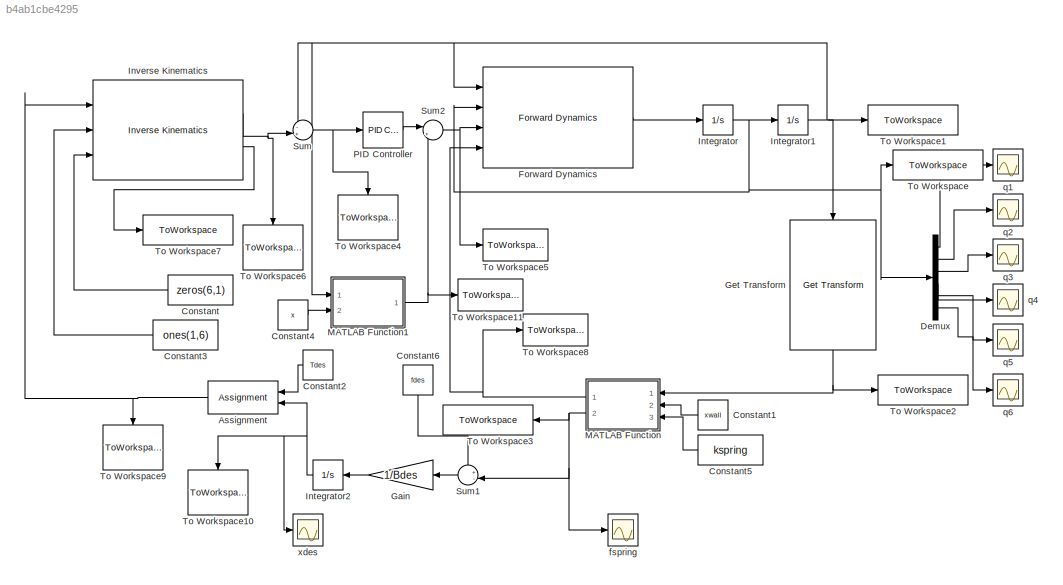
MODEL slx_b4ab1cbe4295
KIND model
CONFIG AbsTol = auto
CONFIG EnableMultiTasking = off
CONFIG FixedStep = 1e-3
CONFIG MaxStep = auto
CONFIG MinStep = auto
CONFIG RelTol = 1e-3
CONFIG SampleTimeConstraint = Unconstrained
CONFIG Solver = FixedStepAuto
CONFIG SolverName = FixedStepAuto
CONFIG StartTime = 0.0
CONFIG StopTime = 5
BLOCK [Assignment] Assignment
  DiagnosticForDimensions = Warning
  IndexOptions = Index vector (dialog),Index vector (dialog)
  Indices = 1,4
  NameLocation = top
  NumberOfDimensions = 2
  OutputSizes = 1,1
  Ports = [2, 1]
BLOCK [Constant] Constant
  NameLocation = top
  Value = zeros(6,1)
BLOCK [Constant] Constant1
  NameLocation = top
  Value = xwall
BLOCK [Constant] Constant2
  NameLocation = top
  Value = Tdes
BLOCK [Constant] Constant3
  NameLocation = top
  Value = ones(1,6)
BLOCK [Constant] Constant4
  Value = x
BLOCK [Constant] Constant5
  NameLocation = top
  Value = kspring
BLOCK [Constant] Constant6
  NameLocation = left
  Value = fdes
BLOCK [Demux] Demux
  Outputs = 6
  Ports = [1, 6]
BLOCK [Reference] Forward Dynamics  REF=robotmaniplib/Forward Dynamics
  Ports = [4, 1]
  SourceBlock = robotmaniplib/Forward Dynamics
  SourceProductBaseCode = RO
  SourceType = Forward Dynamics
BLOCK [Gain] Gain
  Gain = 1/Bdes
  NameLocation = top
BLOCK [Reference] Get Transform  REF=robotmaniplib/Get Transform
  NameLocation = left
  Ports = [1, 1]
  SourceBlock = robotmaniplib/Get Transform
  SourceProductBaseCode = RO
  SourceType = Get Transform
BLOCK [Integrator] Integrator
  InitialCondition = qdotinit
  Ports = [1, 1]
BLOCK [Integrator] Integrator1
  InitialCondition = qinit
  Ports = [1, 1]
BLOCK [Integrator] Integrator2
  InitialCondition = xwall
  LimitOutput = on
  NameLocation = top
  Ports = [1, 1]
  UpperSaturationLimit = 100
BLOCK [Reference] Inverse Kinematics  REF=robotmaniplib/Inverse Kinematics
  Ports = [3, 2]
  SourceBlock = robotmaniplib/Inverse Kinematics
  SourceProductBaseCode = RO
  SourceType = Inverse Kinematics
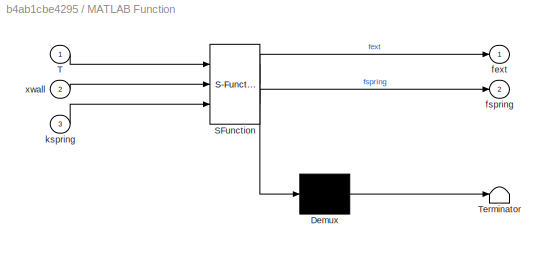
BLOCK [SubSystem] MATLAB Function
  ErrorFcn = Stateflow.Translate.translate
  NameLocation = top
  PermitHierarchicalResolution = ExplicitOnly
  Ports = [3, 2]
  RequestExecContextInheritance = off
  SFBlockType = MATLAB Function
  TreatAsAtomicUnit = on
BLOCK [Demux] MATLAB Function/ Demux 
  Outputs = 1
  Ports = [1, 1]
BLOCK [S-Function] MATLAB Function/ SFunction 
  EnableBusSupport = on
  FunctionName = sf_sfun
  PortCounts = [3 3]
  Ports = [3, 3]
  SFcnIsStateOwnerBlock = off
  SFunctionDeploymentMode = off
  Tag = Stateflow S-Function 2
BLOCK [Terminator] MATLAB Function/ Terminator 
BLOCK [Inport] MATLAB Function/T
BLOCK [Outport] MATLAB Function/fext
BLOCK [Outport] MATLAB Function/fspring
  Port = 2
BLOCK [Inport] MATLAB Function/kspring
  Port = 3
BLOCK [Inport] MATLAB Function/xwall
  Port = 2
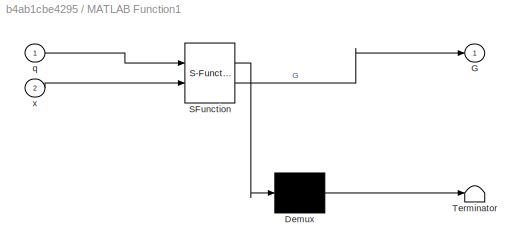
BLOCK [SubSystem] MATLAB Function1
  ErrorFcn = Stateflow.Translate.translate
  PermitHierarchicalResolution = ExplicitOnly
  Ports = [2, 1]
  RequestExecContextInheritance = off
  SFBlockType = MATLAB Function
  TreatAsAtomicUnit = on
BLOCK [Demux] MATLAB Function1/ Demux 
  Outputs = 1
  Ports = [1, 1]
BLOCK [S-Function] MATLAB Function1/ SFunction 
  EnableBusSupport = on
  FunctionName = sf_sfun
  PortCounts = [2 2]
  Ports = [2, 2]
  SFcnIsStateOwnerBlock = off
  SFunctionDeploymentMode = off
  Tag = Stateflow S-Function 1
BLOCK [Terminator] MATLAB Function1/ Terminator 
BLOCK [Outport] MATLAB Function1/G
BLOCK [Inport] MATLAB Function1/q
BLOCK [Inport] MATLAB Function1/x
  Port = 2
BLOCK [Reference] PID Controller  REF=simulink/Continuous/PID Controller
  Ports = [1, 1]
  SourceBlock = simulink/Continuous/PID Controller
  SourceProductBaseCode = SL
  SourceType = PID 1dof
BLOCK [Sum] Sum
  Inputs = -+|
  Ports = [2, 1]
BLOCK [Sum] Sum1
  Inputs = +-|
  NameLocation = top
  Ports = [2, 1]
BLOCK [Sum] Sum2
  Inputs = |++
  Ports = [2, 1]
BLOCK [ToWorkspace] To Workspace
  FixptAsFi = on
  MaxDataPoints = inf
  Ports = [1]
  SampleTime = -1
  VariableName = qdot
BLOCK [ToWorkspace] To Workspace1
  FixptAsFi = on
  MaxDataPoints = inf
  Ports = [1]
  SampleTime = -1
  VariableName = q
BLOCK [ToWorkspace] To Workspace10
  FixptAsFi = on
  MaxDataPoints = inf
  NameLocation = left
  Ports = [1]
  SampleTime = -1
  SaveFormat = Structure With Time
  VariableName = xdes
BLOCK [ToWorkspace] To Workspace11
  FixptAsFi = on
  MaxDataPoints = inf
  Ports = [1]
  SampleTime = -1
  VariableName = taug
BLOCK [ToWorkspace] To Workspace2
  FixptAsFi = on
  MaxDataPoints = inf
  Ports = [1]
  SampleTime = -1
  VariableName = T
BLOCK [ToWorkspace] To Workspace3
  FixptAsFi = on
  MaxDataPoints = inf
  NameLocation = top
  Ports = [1]
  SampleTime = -1
  VariableName = fspring
BLOCK [ToWorkspace] To Workspace4
  FixptAsFi = on
  MaxDataPoints = inf
  NameLocation = left
  Ports = [1]
  SampleTime = -1
  VariableName = qerr
BLOCK [ToWorkspace] To Workspace5
  FixptAsFi = on
  MaxDataPoints = inf
  Ports = [1]
  SampleTime = -1
  VariableName = tau
BLOCK [ToWorkspace] To Workspace6
  FixptAsFi = on
  MaxDataPoints = inf
  NameLocation = left
  Ports = [1]
  SampleTime = -1
  VariableName = qdes
BLOCK [ToWorkspace] To Workspace7
  FixptAsFi = on
  MaxDataPoints = inf
  Ports = [1]
  SampleTime = -1
  SaveFormat = Timeseries
  VariableName = Info
BLOCK [ToWorkspace] To Workspace8
  FixptAsFi = on
  MaxDataPoints = inf
  Ports = [1]
  SampleTime = -1
  VariableName = fext
BLOCK [ToWorkspace] To Workspace9
  FixptAsFi = on
  MaxDataPoints = inf
  NameLocation = left
  Ports = [1]
  SampleTime = -1
  VariableName = Td
BLOCK [Scope] fspring
  Floating = off
  NumInputPorts = 1
  Ports = [1]
  ScopeSpecificationString = Simulink.scopes.TimeScopeBlockCfg('CurrentConfiguration', extmgr.ConfigurationSet(extmgr.Configuration('Core','General UI',true),extmgr.Configuration('Core','Source UI',true),extmgr.Configuration('Sources','WiredSimulink',true,'DataLoggingVariableName','ScopeData1'),extmgr.Configuration('Visuals','Time Domain',true,'SerializedDisplays',{struct('MinYLimReal','-0.31395','MaxYLimReal','2.82553','YLab...<+1437ch>
BLOCK [Scope] q1
  Floating = off
  NumInputPorts = 1
  Ports = [1]
  ScopeSpecificationString = Simulink.scopes.TimeScopeBlockCfg('CurrentConfiguration', extmgr.ConfigurationSet(extmgr.Configuration('Core','General UI',true),extmgr.Configuration('Core','Source UI',true),extmgr.Configuration('Sources','WiredSimulink',true,'DataLoggingVariableName','ScopeData6'),extmgr.Configuration('Visuals','Time Domain',true,'SerializedDisplays',{struct('MinYLimReal','-16.77759','MaxYLimReal','16.45482','YL...<+1438ch>
BLOCK [Scope] q2
  Floating = off
  NumInputPorts = 1
  Ports = [1]
  ScopeSpecificationString = Simulink.scopes.TimeScopeBlockCfg('CurrentConfiguration', extmgr.ConfigurationSet(extmgr.Configuration('Core','General UI',true),extmgr.Configuration('Core','Source UI',true),extmgr.Configuration('Sources','WiredSimulink',true,'DataLoggingVariableName','ScopeData5'),extmgr.Configuration('Visuals','Time Domain',true,'SerializedDisplays',{struct('MinYLimReal','-16.77759','MaxYLimReal','16.45482','YL...<+1438ch>
BLOCK [Scope] q3
  Floating = off
  NumInputPorts = 1
  Ports = [1]
  ScopeSpecificationString = Simulink.scopes.TimeScopeBlockCfg('CurrentConfiguration', extmgr.ConfigurationSet(extmgr.Configuration('Core','General UI',true),extmgr.Configuration('Core','Source UI',true),extmgr.Configuration('Sources','WiredSimulink',true,'DataLoggingVariableName','ScopeData4'),extmgr.Configuration('Visuals','Time Domain',true,'SerializedDisplays',{struct('MinYLimReal','-16.77759','MaxYLimReal','16.45482','YL...<+1438ch>
BLOCK [Scope] q4
  Floating = off
  NumInputPorts = 1
  Ports = [1]
  ScopeSpecificationString = Simulink.scopes.TimeScopeBlockCfg('CurrentConfiguration', extmgr.ConfigurationSet(extmgr.Configuration('Core','General UI',true),extmgr.Configuration('Core','Source UI',true),extmgr.Configuration('Sources','WiredSimulink',true,'DataLoggingVariableName','ScopeData3'),extmgr.Configuration('Visuals','Time Domain',true,'SerializedDisplays',{struct('MinYLimReal','-0.01371','MaxYLimReal','0.01045','YLab...<+1465ch>
BLOCK [Scope] q5
  Floating = off
  NumInputPorts = 1
  Ports = [1]
  ScopeSpecificationString = Simulink.scopes.TimeScopeBlockCfg('CurrentConfiguration', extmgr.ConfigurationSet(extmgr.Configuration('Core','General UI',true),extmgr.Configuration('Core','Source UI',true),extmgr.Configuration('Sources','WiredSimulink',true,'DataLoggingVariableName','ScopeData2'),extmgr.Configuration('Visuals','Time Domain',true,'SerializedDisplays',{struct('MinYLimReal','-15.76438','MaxYLimReal','7.33598','YLa...<+1443ch>
BLOCK [Scope] q6
  Floating = off
  NumInputPorts = 1
  Ports = [1]
  ScopeSpecificationString = Simulink.scopes.TimeScopeBlockCfg('CurrentConfiguration', extmgr.ConfigurationSet(extmgr.Configuration('Core','General UI',true),extmgr.Configuration('Core','Source UI',true),extmgr.Configuration('Sources','WiredSimulink',true,'DataLoggingVariableName','ScopeData1'),extmgr.Configuration('Visuals','Time Domain',true,'SerializedDisplays',{struct('MinYLimReal','-0.013','MaxYLimReal','0.01464','YLabel...<+1461ch>
BLOCK [Scope] xdes
  Floating = off
  NumInputPorts = 1
  Ports = [1]
  ScopeSpecificationString = Simulink.scopes.TimeScopeBlockCfg('CurrentConfiguration', extmgr.ConfigurationSet(extmgr.Configuration('Core','General UI',true),extmgr.Configuration('Core','Source UI',true),extmgr.Configuration('Sources','WiredSimulink',true),extmgr.Configuration('Visuals','Time Domain',true,'SerializedDisplays',{struct('MinYLimReal','0.47516','MaxYLimReal','0.72352','YLabelReal','','MinYLimMag','0.47516','MaxYL...<+1358ch>
NET Assignment:1 -> Inverse Kinematics:1, To Workspace9:1
LINE Constant1:1 -> MATLAB Function:2
LINE Constant2:1 -> Assignment:1
LINE Constant3:1 -> Inverse Kinematics:2
LINE Constant4:1 -> MATLAB Function1:2
LINE Constant5:1 -> MATLAB Function:3
LINE Constant6:1 -> Sum1:1
LINE Constant:1 -> Inverse Kinematics:3
LINE Demux:1 -> q1:1
LINE Demux:2 -> q2:1
LINE Demux:3 -> q3:1
LINE Demux:4 -> q4:1
LINE Demux:5 -> q5:1
LINE Demux:6 -> q6:1
LINE Forward Dynamics:1 -> Integrator:1
LINE Gain:1 -> Integrator2:1
NET Get Transform:1 -> MATLAB Function:1, To Workspace2:1
NET Integrator1:1 -> Forward Dynamics:1, Get Transform:1, MATLAB Function1:1, Sum:1, To Workspace1:1
NET Integrator2:1 -> Assignment:2, To Workspace10:1, xdes:1
NET Integrator:1 -> Demux:1, Forward Dynamics:2, Integrator1:1, To Workspace:1
NET Inverse Kinematics:1 -> Sum:2, To Workspace6:1
LINE Inverse Kinematics:2 -> To Workspace7:1
NET MATLAB Function1:1 -> Sum2:2, To Workspace11:1
NET MATLAB Function:1 -> Forward Dynamics:4, To Workspace8:1
NET MATLAB Function:2 -> Sum1:2, To Workspace3:1, fspring:1
LINE PID Controller:1 -> Sum2:1
LINE Sum1:1 -> Gain:1
NET Sum2:1 -> Forward Dynamics:3, To Workspace5:1
NET Sum:1 -> PID Controller:1, To Workspace4:1
note: NET lines group one-source signal fan-out (src -> all destinations, sorted); 1:1 wires keep LINE
CHART MATLAB Function1 states=1 transitions=1
  STATE_LABEL 'eML_blk_kernel()'
  STATE_LABEL 'SCRIPT:\nfunction G = fcn(q,x)\n\ns2=sin(q(2));\ns23=sin(q(2)+q(3));\nc23=cos(q(2)+q(3));\ns4=sin(q(4));\nc4=cos(q(4));\ns5=sin(q(5));\nc5=cos(q(5));\n\nnx=12;\nAq=[zeros(1,nx);\n    s2 s23 c23 s23*c4*s5 c23*c5 zeros(1,nx-5);...\n    zeros(1,5) s23 c23 s23*c4*s5 c23*c5 zeros(1,nx-9);...\n    zeros(1,9) c23*s4*s5 zeros(1,nx-10);...\n    zeros(1,10) s23*s5 c23*c4*c5;...\n    zeros(1,nx)];\n\nG = Aq*x;\n\nend\n'
CHART MATLAB Function states=1 transitions=1
  STATE_LABEL 'eML_blk_kernel()'
  STATE_LABEL "SCRIPT:\nfunction [fext,fspring] = fcn(T,xwall,kspring)\n\nf=zeros(6,1);\nfspring=0;\nif (T(1,4)>xwall)\n  fspring=kspring*(T(1,4)-xwall);\n  f(4)=fspring;\nend\nfext=zeros(6,8);\np0T=T(1:3,4);R=T(1:3,1:3);\nfext(:,8)=-[R R*hat(R'*p0T);zeros(3,3) R]*f;\n\nend\n\nfunction khat = hat(k)\n  \n  khat=[0 -k(3) k(2); k(3) 0 -k(1); -k(2) k(1) 0];\n  \nend"
CHART  states=0 transitions=0
CHART  states=0 transitions=0
